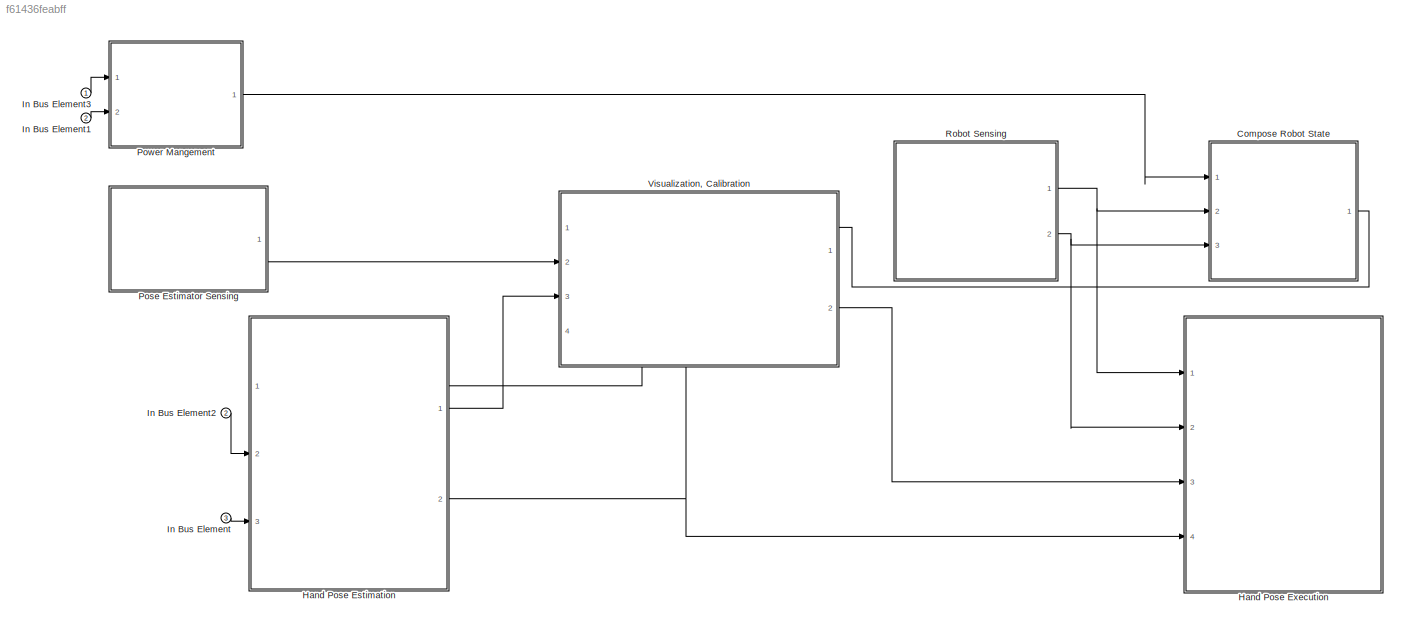
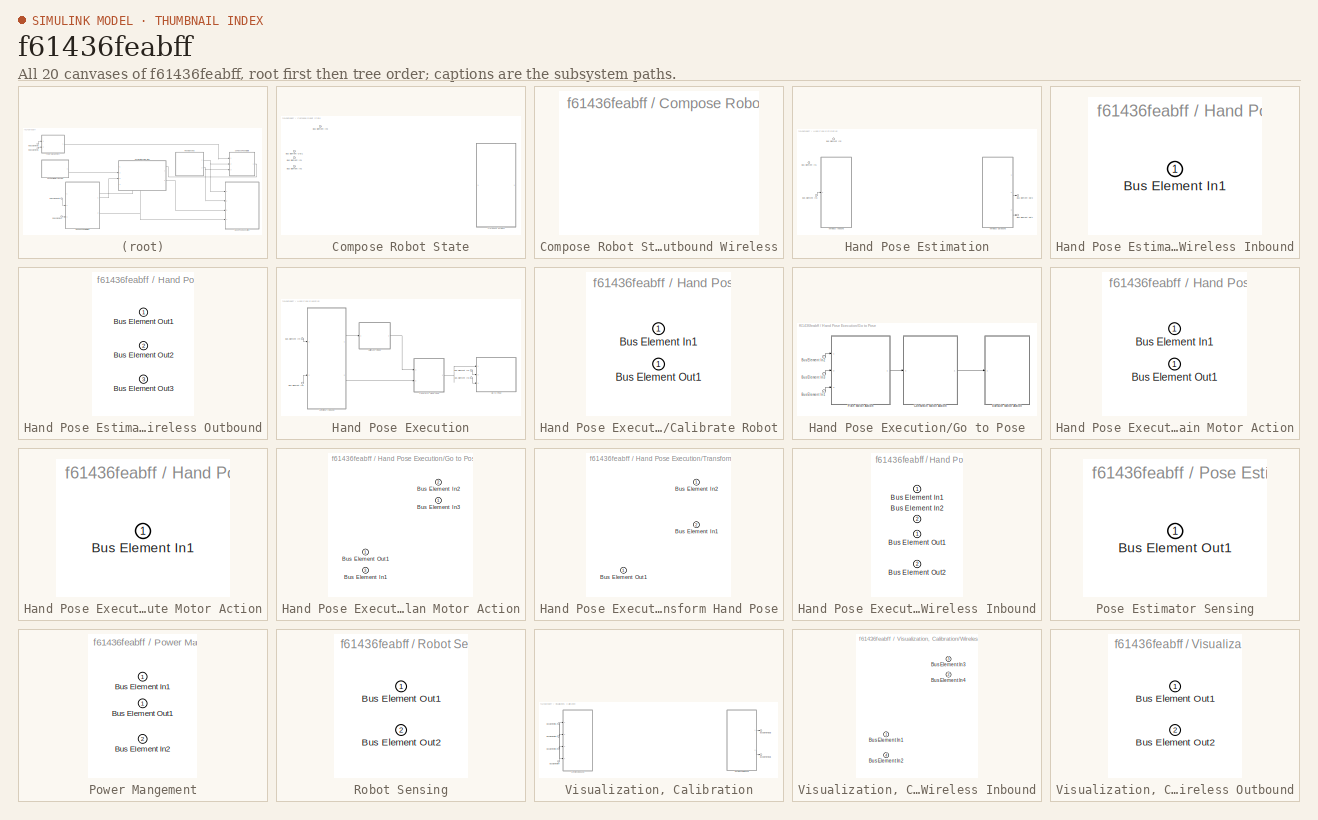
[diagram: thumbnail index - all 20 canvases of the model, root first then tree order]
MODEL slx_f61436feabff
KIND model
CONFIG AbsTol = auto
CONFIG EnableMultiTasking = off
CONFIG FixedStep = auto
CONFIG MaxStep = auto
CONFIG MinStep = auto
CONFIG RelTol = 1e-3
CONFIG SampleTimeConstraint = Unconstrained
CONFIG SolverName = VariableStepAuto
CONFIG StartTime = 0.0
CONFIG StopTime = 10.0
BLOCK [SubSystem] Compose Robot State
  PortSchema = {"entries":[{"content":{"headerSize":26,"margin":15,"minimumSpacing":25,"sides":[{"content":{"connectorIds":["In1","In2","In3"]},"type":"ConnectorPlacement.EquallySpacedRectSide","uuid":"05d6e9f9-85ca-4a6e-a9b5-67e652ad81e0"},{"content":{"connectorIds":["Out1"],"side":"RIGHT"},"type":"ConnectorPlacement.EquallySpacedRectSide","uuid":"e4d931d8-63a7-4c55-9fa4-e3388543b788"},{"content":{"connectorIds...<+300ch>
  Ports = [3, 1]
  RequestExecContextInheritance = off
BLOCK [Inport] Compose Robot State/Bus Element In1
  Port = 2
BLOCK [Inport] Compose Robot State/Bus Element In2
  Port = 3
BLOCK [Inport] Compose Robot State/Bus Element In3
BLOCK [Outport] Compose Robot State/Bus Element Out1
BLOCK [SubSystem] Compose Robot State/Outbound Wireless
  PortSchema = {"entries":[{"content":{"headerSize":26,"margin":15,"minimumSpacing":25,"sides":[{"content":{"connectorIds":[]},"type":"ConnectorPlacement.EquallySpacedRectSide","uuid":"05d6e9f9-85ca-4a6e-a9b5-67e652ad81e0"},{"content":{"connectorIds":[],"side":"RIGHT"},"type":"ConnectorPlacement.EquallySpacedRectSide","uuid":"e4d931d8-63a7-4c55-9fa4-e3388543b788"},{"content":{"connectorIds":[],"side":"TOP"},"typ...<+277ch>
  Ports = []
  RequestExecContextInheritance = off
BLOCK [SubSystem] Hand Pose Estimation
  PortSchema = {"entries":[{"content":{"headerSize":26,"margin":15,"minimumSpacing":25,"sides":[{"content":{"connectorIds":["In2","In3"]},"type":"ConnectorPlacement.EquallySpacedRectSide","uuid":"05d6e9f9-85ca-4a6e-a9b5-67e652ad81e0"},{"content":{"connectorIds":["Out1","Out2"],"side":"RIGHT"},"type":"ConnectorPlacement.EquallySpacedRectSide","uuid":"e4d931d8-63a7-4c55-9fa4-e3388543b788"},{"content":{"connectorId...<+306ch>
  Ports = [3, 2]
  RequestExecContextInheritance = off
BLOCK [Inport] Hand Pose Estimation/Bus Element In1
  Port = 3
BLOCK [Inport] Hand Pose Estimation/Bus Element In2
  Port = 2
BLOCK [Inport] Hand Pose Estimation/Bus Element In3
BLOCK [Outport] Hand Pose Estimation/Bus Element Out1
  Port = 2
BLOCK [Outport] Hand Pose Estimation/Bus Element Out3
BLOCK [SubSystem] Hand Pose Estimation/Wireless Inbound
  PortSchema = {"entries":[{"content":{"headerSize":26,"margin":15,"minimumSpacing":25,"sides":[{"content":{"connectorIds":["In1"]},"type":"ConnectorPlacement.EquallySpacedRectSide","uuid":"05d6e9f9-85ca-4a6e-a9b5-67e652ad81e0"},{"content":{"connectorIds":[],"side":"RIGHT"},"type":"ConnectorPlacement.EquallySpacedRectSide","uuid":"e4d931d8-63a7-4c55-9fa4-e3388543b788"},{"content":{"connectorIds":[],"side":"TOP"}...<+282ch>
  Ports = [1]
  RequestExecContextInheritance = off
BLOCK [Inport] Hand Pose Estimation/Wireless Inbound/Bus Element In1
BLOCK [SubSystem] Hand Pose Estimation/Wireless Outbound
  PortSchema = {"entries":[{"content":{"headerSize":26,"margin":15,"minimumSpacing":25,"sides":[{"content":{"connectorIds":[]},"type":"ConnectorPlacement.EquallySpacedRectSide","uuid":"05d6e9f9-85ca-4a6e-a9b5-67e652ad81e0"},{"content":{"connectorIds":["Out1","Out2","Out3"],"side":"RIGHT"},"type":"ConnectorPlacement.EquallySpacedRectSide","uuid":"e4d931d8-63a7-4c55-9fa4-e3388543b788"},{"content":{"connectorIds":[...<+297ch>
  Ports = [0, 3]
  RequestExecContextInheritance = off
BLOCK [Outport] Hand Pose Estimation/Wireless Outbound/Bus Element Out1
BLOCK [Outport] Hand Pose Estimation/Wireless Outbound/Bus Element Out2
  Port = 2
BLOCK [Outport] Hand Pose Estimation/Wireless Outbound/Bus Element Out3
  Port = 3
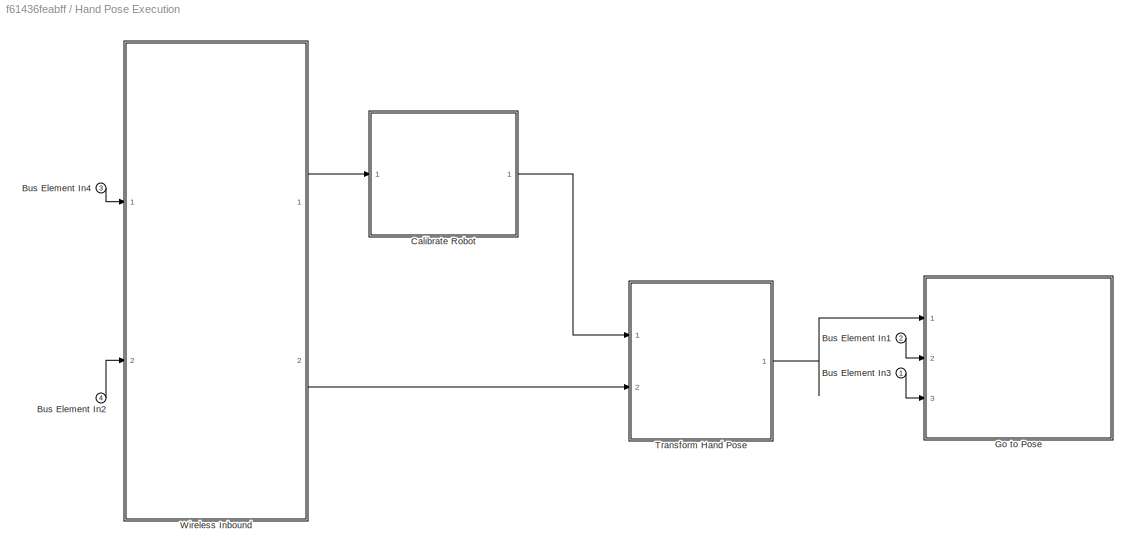
BLOCK [SubSystem] Hand Pose Execution
  PortSchema = {"entries":[{"content":{"headerSize":26,"margin":15,"minimumSpacing":25,"sides":[{"content":{"connectorIds":["In1","In2","In3","In4"]},"type":"ConnectorPlacement.EquallySpacedRectSide","uuid":"05d6e9f9-85ca-4a6e-a9b5-67e652ad81e0"},{"content":{"connectorIds":[],"side":"RIGHT"},"type":"ConnectorPlacement.EquallySpacedRectSide","uuid":"e4d931d8-63a7-4c55-9fa4-e3388543b788"},{"content":{"connectorIds...<+300ch>
  Ports = [4]
  RequestExecContextInheritance = off
BLOCK [Inport] Hand Pose Execution/Bus Element In1
  Port = 2
BLOCK [Inport] Hand Pose Execution/Bus Element In2
  Port = 4
BLOCK [Inport] Hand Pose Execution/Bus Element In3
BLOCK [Inport] Hand Pose Execution/Bus Element In4
  Port = 3
BLOCK [SubSystem] Hand Pose Execution/Calibrate Robot
  PortSchema = {"entries":[{"content":{"headerSize":26,"margin":15,"minimumSpacing":25,"sides":[{"content":{"connectorIds":["In1"]},"type":"ConnectorPlacement.EquallySpacedRectSide","uuid":"05d6e9f9-85ca-4a6e-a9b5-67e652ad81e0"},{"content":{"connectorIds":["Out1"],"side":"RIGHT"},"type":"ConnectorPlacement.EquallySpacedRectSide","uuid":"e4d931d8-63a7-4c55-9fa4-e3388543b788"},{"content":{"connectorIds":[],"side":...<+288ch>
  Ports = [1, 1]
  RequestExecContextInheritance = off
BLOCK [Inport] Hand Pose Execution/Calibrate Robot/Bus Element In1
BLOCK [Outport] Hand Pose Execution/Calibrate Robot/Bus Element Out1
BLOCK [SubSystem] Hand Pose Execution/Go to Pose
  PortSchema = {"entries":[{"content":{"headerSize":26,"margin":15,"minimumSpacing":25,"sides":[{"content":{"connectorIds":["In2","In3","In1"]},"type":"ConnectorPlacement.EquallySpacedRectSide","uuid":"05d6e9f9-85ca-4a6e-a9b5-67e652ad81e0"},{"content":{"connectorIds":[],"side":"RIGHT"},"type":"ConnectorPlacement.EquallySpacedRectSide","uuid":"e4d931d8-63a7-4c55-9fa4-e3388543b788"},{"content":{"connectorIds":[],"...<+294ch>
  Ports = [3]
  RequestExecContextInheritance = off
BLOCK [Inport] Hand Pose Execution/Go to Pose/Bus Element In1
BLOCK [Inport] Hand Pose Execution/Go to Pose/Bus Element In2
  Port = 3
BLOCK [Inport] Hand Pose Execution/Go to Pose/Bus Element In3
  Port = 2
BLOCK [SubSystem] Hand Pose Execution/Go to Pose/Constrain Motor Action
  PortSchema = {"entries":[{"content":{"headerSize":26,"margin":15,"minimumSpacing":25,"sides":[{"content":{"connectorIds":["In1"]},"type":"ConnectorPlacement.EquallySpacedRectSide","uuid":"05d6e9f9-85ca-4a6e-a9b5-67e652ad81e0"},{"content":{"connectorIds":["Out1"],"side":"RIGHT"},"type":"ConnectorPlacement.EquallySpacedRectSide","uuid":"e4d931d8-63a7-4c55-9fa4-e3388543b788"},{"content":{"connectorIds":[],"side":...<+288ch>
  Ports = [1, 1]
  RequestExecContextInheritance = off
BLOCK [Inport] Hand Pose Execution/Go to Pose/Constrain Motor Action/Bus Element In1
BLOCK [Outport] Hand Pose Execution/Go to Pose/Constrain Motor Action/Bus Element Out1
BLOCK [SubSystem] Hand Pose Execution/Go to Pose/Execute Motor Action
  PortSchema = {"entries":[{"content":{"headerSize":26,"margin":15,"minimumSpacing":25,"sides":[{"content":{"connectorIds":["In1"]},"type":"ConnectorPlacement.EquallySpacedRectSide","uuid":"05d6e9f9-85ca-4a6e-a9b5-67e652ad81e0"},{"content":{"connectorIds":[],"side":"RIGHT"},"type":"ConnectorPlacement.EquallySpacedRectSide","uuid":"e4d931d8-63a7-4c55-9fa4-e3388543b788"},{"content":{"connectorIds":[],"side":"TOP"}...<+282ch>
  Ports = [1]
  RequestExecContextInheritance = off
BLOCK [Inport] Hand Pose Execution/Go to Pose/Execute Motor Action/Bus Element In1
BLOCK [SubSystem] Hand Pose Execution/Go to Pose/Plan Motor Action
  PortSchema = {"entries":[{"content":{"headerSize":26,"margin":15,"minimumSpacing":25,"sides":[{"content":{"connectorIds":["In1","In2","In3"]},"type":"ConnectorPlacement.EquallySpacedRectSide","uuid":"05d6e9f9-85ca-4a6e-a9b5-67e652ad81e0"},{"content":{"connectorIds":["Out1"],"side":"RIGHT"},"type":"ConnectorPlacement.EquallySpacedRectSide","uuid":"e4d931d8-63a7-4c55-9fa4-e3388543b788"},{"content":{"connectorIds...<+300ch>
  Ports = [3, 1]
  RequestExecContextInheritance = off
BLOCK [Inport] Hand Pose Execution/Go to Pose/Plan Motor Action/Bus Element In1
  Port = 3
BLOCK [Inport] Hand Pose Execution/Go to Pose/Plan Motor Action/Bus Element In2
  Port = 2
BLOCK [Inport] Hand Pose Execution/Go to Pose/Plan Motor Action/Bus Element In3
BLOCK [Outport] Hand Pose Execution/Go to Pose/Plan Motor Action/Bus Element Out1
BLOCK [SubSystem] Hand Pose Execution/Transform Hand Pose
  PortSchema = {"entries":[{"content":{"headerSize":26,"margin":15,"minimumSpacing":25,"sides":[{"content":{"connectorIds":["In1","In2"]},"type":"ConnectorPlacement.EquallySpacedRectSide","uuid":"05d6e9f9-85ca-4a6e-a9b5-67e652ad81e0"},{"content":{"connectorIds":["Out1"],"side":"RIGHT"},"type":"ConnectorPlacement.EquallySpacedRectSide","uuid":"e4d931d8-63a7-4c55-9fa4-e3388543b788"},{"content":{"connectorIds":[],"...<+294ch>
  Ports = [2, 1]
  RequestExecContextInheritance = off
BLOCK [Inport] Hand Pose Execution/Transform Hand Pose/Bus Element In1
  Port = 2
BLOCK [Inport] Hand Pose Execution/Transform Hand Pose/Bus Element In2
BLOCK [Outport] Hand Pose Execution/Transform Hand Pose/Bus Element Out1
BLOCK [SubSystem] Hand Pose Execution/Wireless Inbound
  PortSchema = {"entries":[{"content":{"headerSize":26,"margin":15,"minimumSpacing":25,"sides":[{"content":{"connectorIds":["In1","In2"]},"type":"ConnectorPlacement.EquallySpacedRectSide","uuid":"05d6e9f9-85ca-4a6e-a9b5-67e652ad81e0"},{"content":{"connectorIds":["Out1","Out2"],"side":"RIGHT"},"type":"ConnectorPlacement.EquallySpacedRectSide","uuid":"e4d931d8-63a7-4c55-9fa4-e3388543b788"},{"content":{"connectorId...<+301ch>
  Ports = [2, 2]
  RequestExecContextInheritance = off
BLOCK [Inport] Hand Pose Execution/Wireless Inbound/Bus Element In1
BLOCK [Inport] Hand Pose Execution/Wireless Inbound/Bus Element In2
  Port = 2
BLOCK [Outport] Hand Pose Execution/Wireless Inbound/Bus Element Out1
BLOCK [Outport] Hand Pose Execution/Wireless Inbound/Bus Element Out2
  Port = 2
BLOCK [Inport] In Bus Element
  Port = 3
BLOCK [Inport] In Bus Element1
  Port = 2
BLOCK [Inport] In Bus Element2
  Port = 2
BLOCK [Inport] In Bus Element3
BLOCK [SubSystem] Pose Estimator Sensing
  PortSchema = {"entries":[{"content":{"headerSize":26,"margin":15,"minimumSpacing":25,"sides":[{"content":{"connectorIds":[]},"type":"ConnectorPlacement.EquallySpacedRectSide","uuid":"05d6e9f9-85ca-4a6e-a9b5-67e652ad81e0"},{"content":{"connectorIds":["Out1"],"side":"RIGHT"},"type":"ConnectorPlacement.EquallySpacedRectSide","uuid":"e4d931d8-63a7-4c55-9fa4-e3388543b788"},{"content":{"connectorIds":[],"side":"TOP"...<+283ch>
  Ports = [0, 1]
  RequestExecContextInheritance = off
BLOCK [Outport] Pose Estimator Sensing/Bus Element Out1
BLOCK [SubSystem] Power Mangement
  PortSchema = {"entries":[{"content":{"headerSize":26,"margin":15,"minimumSpacing":25,"sides":[{"content":{"connectorIds":["In1","In2"]},"type":"ConnectorPlacement.EquallySpacedRectSide","uuid":"05d6e9f9-85ca-4a6e-a9b5-67e652ad81e0"},{"content":{"connectorIds":["Out1"],"side":"RIGHT"},"type":"ConnectorPlacement.EquallySpacedRectSide","uuid":"e4d931d8-63a7-4c55-9fa4-e3388543b788"},{"content":{"connectorIds":[],"...<+294ch>
  Ports = [2, 1]
  RequestExecContextInheritance = off
BLOCK [Inport] Power Mangement/Bus Element In1
BLOCK [Inport] Power Mangement/Bus Element In2
  Port = 2
BLOCK [Outport] Power Mangement/Bus Element Out1
BLOCK [SubSystem] Robot Sensing
  PortSchema = {"entries":[{"content":{"headerSize":26,"margin":15,"minimumSpacing":25,"sides":[{"content":{"connectorIds":[]},"type":"ConnectorPlacement.EquallySpacedRectSide","uuid":"05d6e9f9-85ca-4a6e-a9b5-67e652ad81e0"},{"content":{"connectorIds":["Out1","Out2"],"side":"RIGHT"},"type":"ConnectorPlacement.EquallySpacedRectSide","uuid":"e4d931d8-63a7-4c55-9fa4-e3388543b788"},{"content":{"connectorIds":[],"side...<+290ch>
  Ports = [0, 2]
  RequestExecContextInheritance = off
BLOCK [Outport] Robot Sensing/Bus Element Out1
BLOCK [Outport] Robot Sensing/Bus Element Out2
  Port = 2
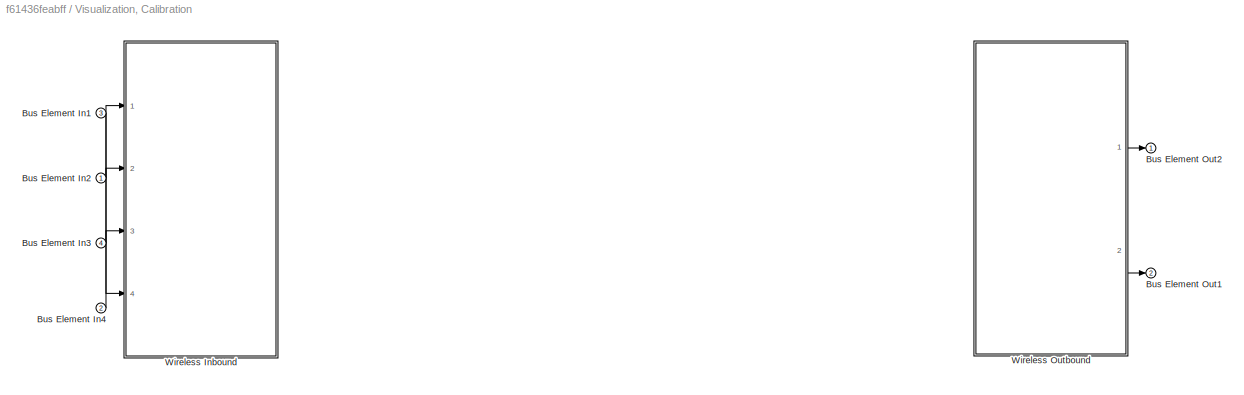
BLOCK [SubSystem] Visualization, Calibration
  PortSchema = {"entries":[{"content":{"headerSize":26,"margin":15,"minimumSpacing":25,"sides":[{"content":{"connectorIds":["In2","Out1","In3"]},"type":"ConnectorPlacement.EquallySpacedRectSide","uuid":"05d6e9f9-85ca-4a6e-a9b5-67e652ad81e0"},{"content":{"connectorIds":["In1","Out2"],"side":"RIGHT"},"type":"ConnectorPlacement.EquallySpacedRectSide","uuid":"e4d931d8-63a7-4c55-9fa4-e3388543b788"},{"content":{"conne...<+456ch>
  Ports = [4, 2]
  RequestExecContextInheritance = off
BLOCK [Inport] Visualization, Calibration/Bus Element In1
  Port = 3
BLOCK [Inport] Visualization, Calibration/Bus Element In2
BLOCK [Inport] Visualization, Calibration/Bus Element In3
  Port = 4
BLOCK [Inport] Visualization, Calibration/Bus Element In4
  Port = 2
BLOCK [Outport] Visualization, Calibration/Bus Element Out1
  Port = 2
BLOCK [Outport] Visualization, Calibration/Bus Element Out2
BLOCK [SubSystem] Visualization, Calibration/Wireless Inbound
  PortSchema = {"entries":[{"content":{"headerSize":26,"margin":15,"minimumSpacing":25,"sides":[{"content":{"connectorIds":["In4","In2","In3","In1"]},"type":"ConnectorPlacement.EquallySpacedRectSide","uuid":"05d6e9f9-85ca-4a6e-a9b5-67e652ad81e0"},{"content":{"connectorIds":[],"side":"RIGHT"},"type":"ConnectorPlacement.EquallySpacedRectSide","uuid":"e4d931d8-63a7-4c55-9fa4-e3388543b788"},{"content":{"connectorIds...<+300ch>
  Ports = [4]
  RequestExecContextInheritance = off
BLOCK [Inport] Visualization, Calibration/Wireless Inbound/Bus Element In1
BLOCK [Inport] Visualization, Calibration/Wireless Inbound/Bus Element In2
  Port = 4
BLOCK [Inport] Visualization, Calibration/Wireless Inbound/Bus Element In3
  Port = 3
BLOCK [Inport] Visualization, Calibration/Wireless Inbound/Bus Element In4
  Port = 2
BLOCK [SubSystem] Visualization, Calibration/Wireless Outbound
  PortSchema = {"entries":[{"content":{"headerSize":26,"margin":15,"minimumSpacing":25,"sides":[{"content":{"connectorIds":[]},"type":"ConnectorPlacement.EquallySpacedRectSide","uuid":"05d6e9f9-85ca-4a6e-a9b5-67e652ad81e0"},{"content":{"connectorIds":["Out1","Out2"],"side":"RIGHT"},"type":"ConnectorPlacement.EquallySpacedRectSide","uuid":"e4d931d8-63a7-4c55-9fa4-e3388543b788"},{"content":{"connectorIds":[],"side...<+290ch>
  Ports = [0, 2]
  RequestExecContextInheritance = off
BLOCK [Outport] Visualization, Calibration/Wireless Outbound/Bus Element Out1
BLOCK [Outport] Visualization, Calibration/Wireless Outbound/Bus Element Out2
  Port = 2
LINE Compose Robot State:1 -> Visualization, Calibration:1
LINE Hand Pose Estimation/Bus Element In3:1 -> Hand Pose Estimation/Wireless Inbound:1
LINE Hand Pose Estimation/Wireless Outbound:2 -> Hand Pose Estimation/Bus Element Out3:1
LINE Hand Pose Estimation/Wireless Outbound:3 -> Hand Pose Estimation/Bus Element Out1:1
LINE Hand Pose Estimation:1 -> Visualization, Calibration:3
NET Hand Pose Estimation:2 -> Hand Pose Execution:4, Visualization, Calibration:4
LINE Hand Pose Execution/Bus Element In1:1 -> Hand Pose Execution/Go to Pose:2
LINE Hand Pose Execution/Bus Element In2:1 -> Hand Pose Execution/Wireless Inbound:2
LINE Hand Pose Execution/Bus Element In3:1 -> Hand Pose Execution/Go to Pose:3
LINE Hand Pose Execution/Bus Element In4:1 -> Hand Pose Execution/Wireless Inbound:1
LINE Hand Pose Execution/Calibrate Robot:1 -> Hand Pose Execution/Transform Hand Pose:1
LINE Hand Pose Execution/Go to Pose/Bus Element In1:1 -> Hand Pose Execution/Go to Pose/Plan Motor Action:3
LINE Hand Pose Execution/Go to Pose/Bus Element In2:1 -> Hand Pose Execution/Go to Pose/Plan Motor Action:1
LINE Hand Pose Execution/Go to Pose/Bus Element In3:1 -> Hand Pose Execution/Go to Pose/Plan Motor Action:2
LINE Hand Pose Execution/Go to Pose/Constrain Motor Action:1 -> Hand Pose Execution/Go to Pose/Execute Motor Action:1
LINE Hand Pose Execution/Go to Pose/Plan Motor Action:1 -> Hand Pose Execution/Go to Pose/Constrain Motor Action:1
LINE Hand Pose Execution/Transform Hand Pose:1 -> Hand Pose Execution/Go to Pose:1
LINE Hand Pose Execution/Wireless Inbound:1 -> Hand Pose Execution/Calibrate Robot:1
LINE Hand Pose Execution/Wireless Inbound:2 -> Hand Pose Execution/Transform Hand Pose:2
LINE In Bus Element1:1 -> Power Mangement:2
LINE In Bus Element2:1 -> Hand Pose Estimation:2
LINE In Bus Element3:1 -> Power Mangement:1
LINE In Bus Element:1 -> Hand Pose Estimation:3
LINE Pose Estimator Sensing:1 -> Visualization, Calibration:2
LINE Power Mangement:1 -> Compose Robot State:1
NET Robot Sensing:1 -> Compose Robot State:2, Hand Pose Execution:1
NET Robot Sensing:2 -> Compose Robot State:3, Hand Pose Execution:2
LINE Visualization, Calibration/Bus Element In1:1 -> Visualization, Calibration/Wireless Inbound:4
LINE Visualization, Calibration/Bus Element In2:1 -> Visualization, Calibration/Wireless Inbound:2
LINE Visualization, Calibration/Bus Element In3:1 -> Visualization, Calibration/Wireless Inbound:3
LINE Visualization, Calibration/Bus Element In4:1 -> Visualization, Calibration/Wireless Inbound:1
LINE Visualization, Calibration/Wireless Outbound:1 -> Visualization, Calibration/Bus Element Out2:1
LINE Visualization, Calibration/Wireless Outbound:2 -> Visualization, Calibration/Bus Element Out1:1
LINE Visualization, Calibration:1 -> Hand Pose Estimation:1
LINE Visualization, Calibration:2 -> Hand Pose Execution:3
note: NET lines group one-source signal fan-out (src -> all destinations, sorted); 1:1 wires keep LINE
